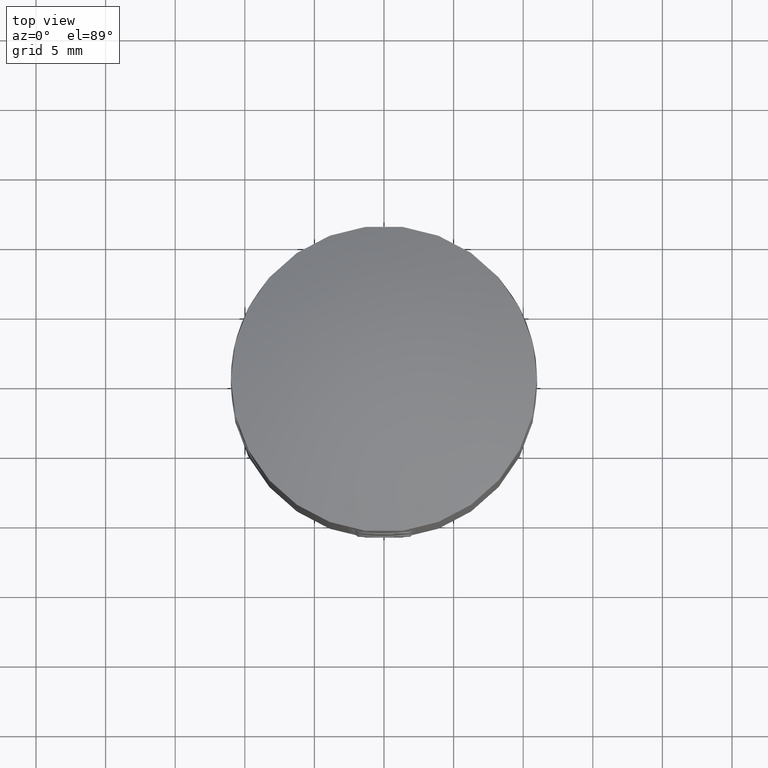
[diagram: clean part render]
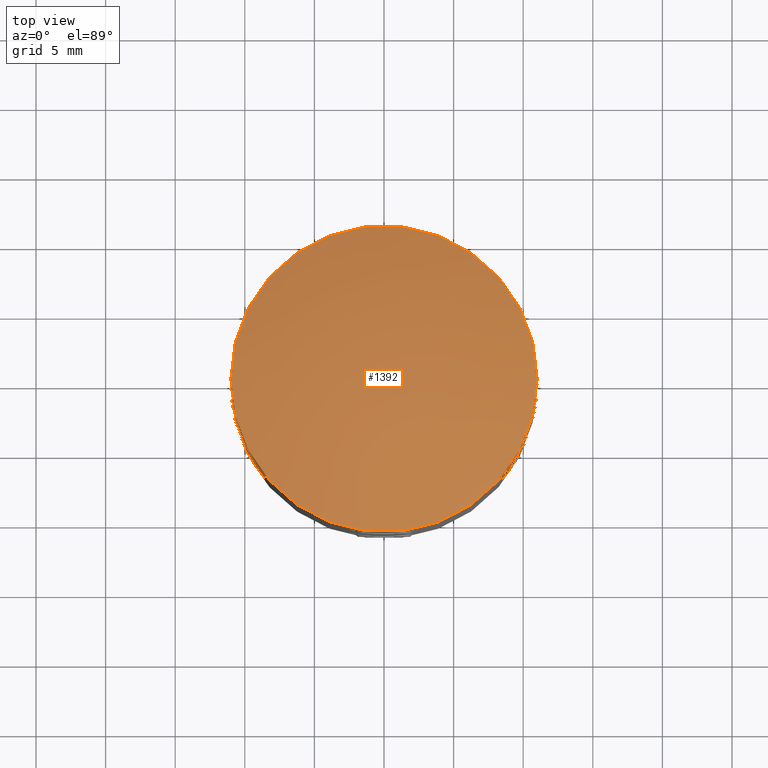
[diagram: same view with one face highlighted and labeled with its STEP entity id]
A machine part, top view. The second image highlights one B-rep face of the part: STEP entity #1392.
In plain terms, the highlighted spherical surface has radius 28 mm.
Its self-contained STEP definition (entity closure, byte-faithful):
#421 = FACE_OUTER_BOUND ( 'NONE', #19048, .T. ) ;
#519 = DIRECTION ( 'NONE',  ( -0.0000000000000000000, -0.0000000000000000000, 1.000000000000000000 ) ) ;
#1392 = ADVANCED_FACE ( 'NONE', ( #421 ), #20814, .T. ) ;
#3225 = CARTESIAN_POINT ( 'NONE',  ( 10.99999999999999600, 0.0000000000000000000, 23.74878637916747000 ) ) ;
#5437 = CARTESIAN_POINT ( 'NONE',  ( 0.0000000000000000000, 0.0000000000000000000, 23.74878637916747000 ) ) ;
#7569 = ORIENTED_EDGE ( 'NONE', *, *, #9612, .T. ) ;
#9612 = EDGE_CURVE ( 'NONE', #9706, #9706, #19639, .T. ) ;
#9706 = VERTEX_POINT ( 'NONE', #3225 ) ;
#13913 = DIRECTION ( 'NONE',  ( 1.000000000000000000, 0.0000000000000000000, 0.0000000000000000000 ) ) ;
#14746 = AXIS2_PLACEMENT_3D ( 'NONE', #5437, #519, #13913 ) ;
#15648 = CARTESIAN_POINT ( 'NONE',  ( 0.0000000000000000000, 0.0000000000000000000, -2.000000000000008900 ) ) ;
#19024 = DIRECTION ( 'NONE',  ( -1.000000000000000000, 0.0000000000000000000, 0.0000000000000000000 ) ) ;
#19048 = EDGE_LOOP ( 'NONE', ( #7569 ) ) ;
#19592 = AXIS2_PLACEMENT_3D ( 'NONE', #15648, #19024, #20690 ) ;
#19639 = CIRCLE ( 'NONE', #14746, 10.99999999999999600 ) ;
#20690 = DIRECTION ( 'NONE',  ( 0.0000000000000000000, 1.000000000000000000, 0.0000000000000000000 ) ) ;
#20814 = SPHERICAL_SURFACE ( 'NONE', #19592, 28.00000000000000400 ) ;